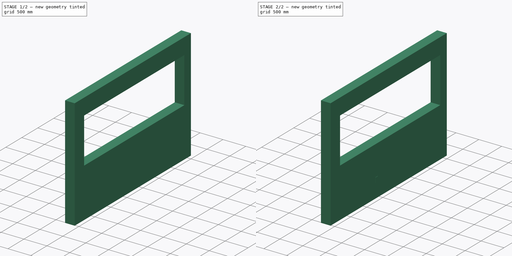
[diagram: build sequence overview — one tinted view per stage of 2, left to right]
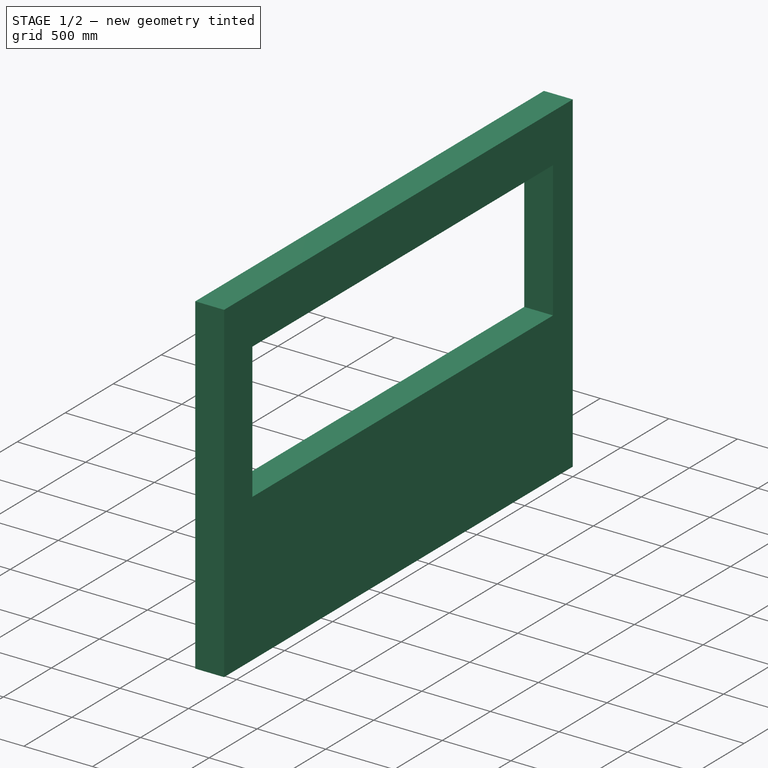
[diagram: stage 1 of 2 — iso view after this stage's code; geometry added in this stage tinted green]
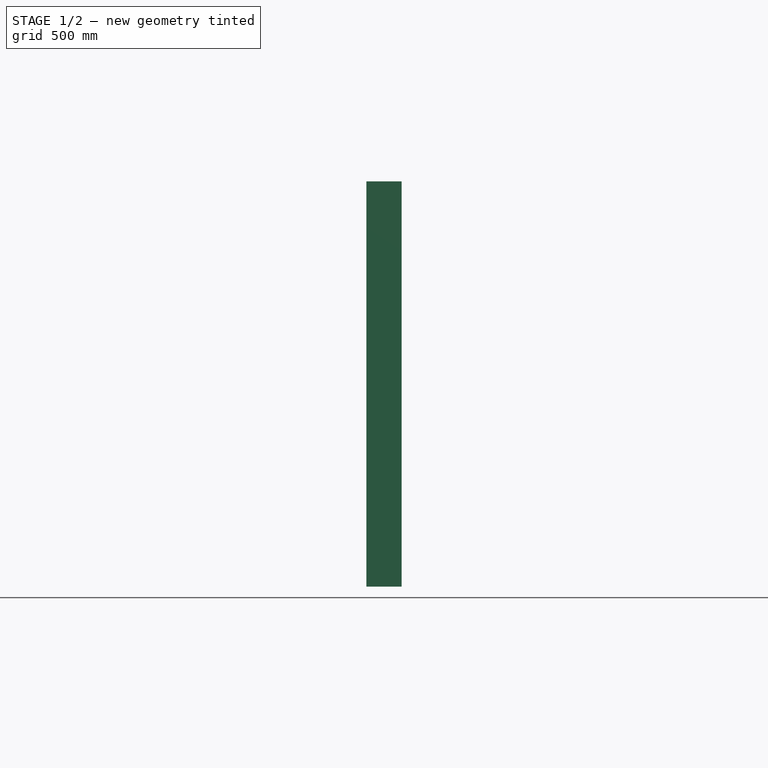
[diagram: stage 1 of 2 — front view after this stage's code; geometry added in this stage tinted green]
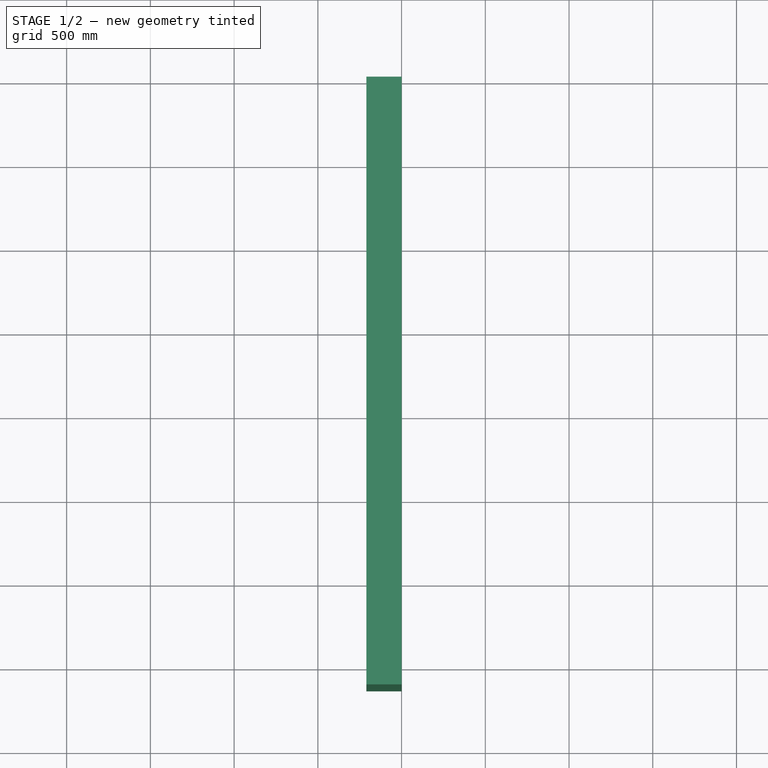
[diagram: stage 1 of 2 — top view after this stage's code; geometry added in this stage tinted green]
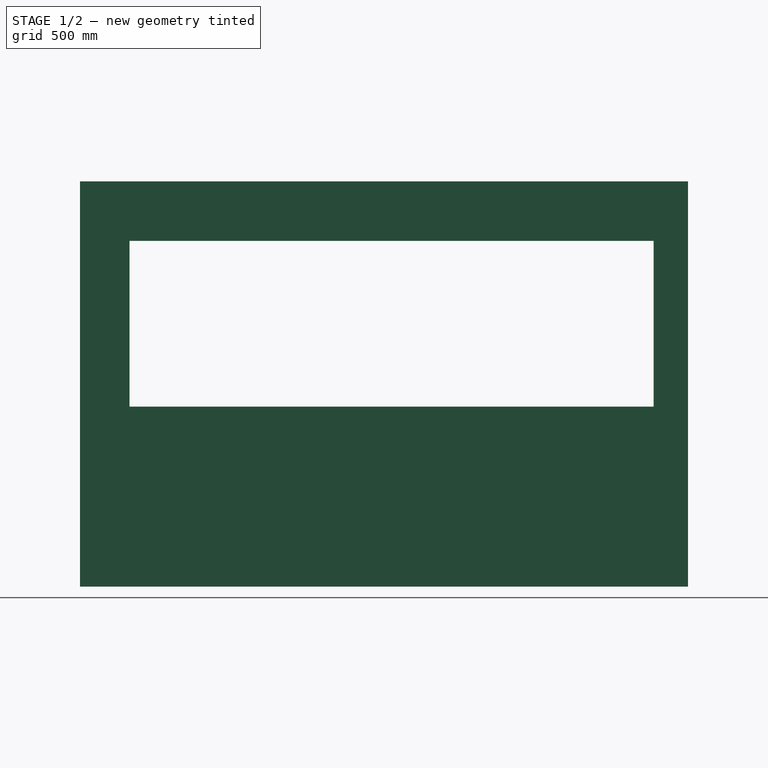
[diagram: stage 1 of 2 — right view after this stage's code; geometry added in this stage tinted green]
FCSTD DOCUMENT  (FreeCAD 0.19R24276 (Git))
Label: leftWall
License: All rights reserved
LicenseURL: http://en.wikipedia.org/wiki/All_rights_reserved
objects: Sketcher::SketchObject×2, PartDesign::Pad×2, PartDesign::Body×1
note: 7 computed .brp shape members not serialized (recipe doc carries the construction recipe); baked Part::Feature solids carry a one-line shape summary decoded from their .brp

FEATURE [Sketcher::SketchObject] Sketch
  FullyConstrained = true
  MapMode = 5
  Placement = pos=(0,0,0) rot=(0.57735,0.57735,0.57735;2.0944rad)
  Support = -> [YZ_Plane]
  sketch-geometry (8):
    g0: LineSegment StartX=0 StartY=0 StartZ=0 EndX=-3630 EndY=0 EndZ=0
    g1: LineSegment StartX=-3630 StartY=0 StartZ=0 EndX=-3630 EndY=2420 EndZ=0
    g2: LineSegment StartX=-3630 StartY=2420 StartZ=0 EndX=0 EndY=2420 EndZ=0
    g3: LineSegment StartX=0 StartY=2420 StartZ=0 EndX=0 EndY=0 EndZ=0
    g4: LineSegment StartX=-3335 StartY=2065 StartZ=0 EndX=-205 EndY=2065 EndZ=0
    g5: LineSegment StartX=-205 StartY=2065 StartZ=0 EndX=-205 EndY=1075 EndZ=0
    g6: LineSegment StartX=-205 StartY=1075 StartZ=0 EndX=-3335 EndY=1075 EndZ=0
    g7: LineSegment StartX=-3335 StartY=1075 StartZ=0 EndX=-3335 EndY=2065 EndZ=0
  constraints (23):
    c: Coincident(g0,g1)
    c: Coincident(g1,g2)
    c: Coincident(g2,g3)
    c: Coincident(g3,g0)
    c: Horizontal(g0)
    c: Horizontal(g2)
    c: Vertical(g1)
    c: Vertical(g3)
    c: Coincident(g0,g-1)
    c: DistanceX(g2,g2) = 3630
    c: DistanceY(g3,g3) = 2420
    c: Coincident(g4,g5)
    c: Coincident(g5,g6)
    c: Coincident(g6,g7)
    c: Coincident(g7,g4)
    c: Horizontal(g4)
    c: Horizontal(g6)
    c: Vertical(g5)
    c: Vertical(g7)
    c: DistanceX(g0,g6) = 295
    c: DistanceY(g0,g6) = 1075
    c: DistanceY(g7,g7) = 990
    c: DistanceX(g4,g4) = 3130
FEATURE [PartDesign::Pad] Pad
  Direction = (1,1,1)
  Length = 210
  Length2 = 100
  Placement = pos=(0,0,0) rot=(0.57735,0.57735,0.57735;2.0944rad)
  Profile = -> Sketch
  Reversed = true
  Type = 0
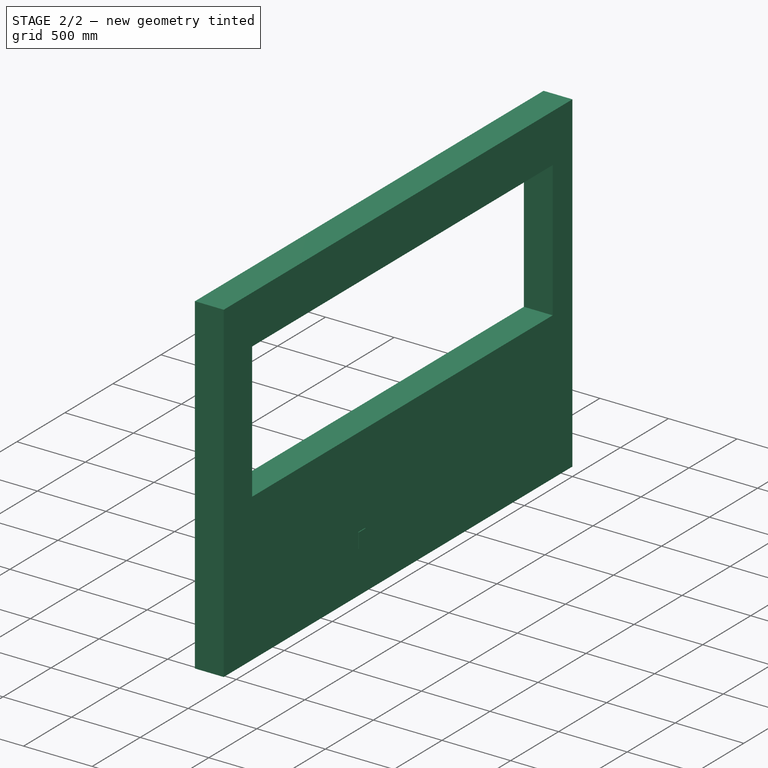
[diagram: stage 2 of 2 — iso view after this stage's code; geometry added in this stage tinted green]
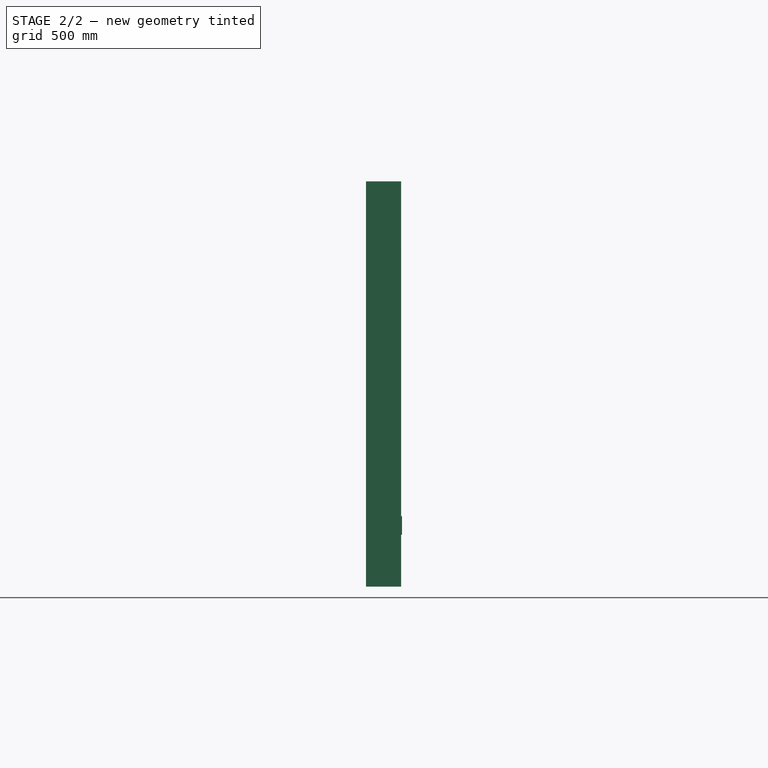
[diagram: stage 2 of 2 — front view after this stage's code; geometry added in this stage tinted green]
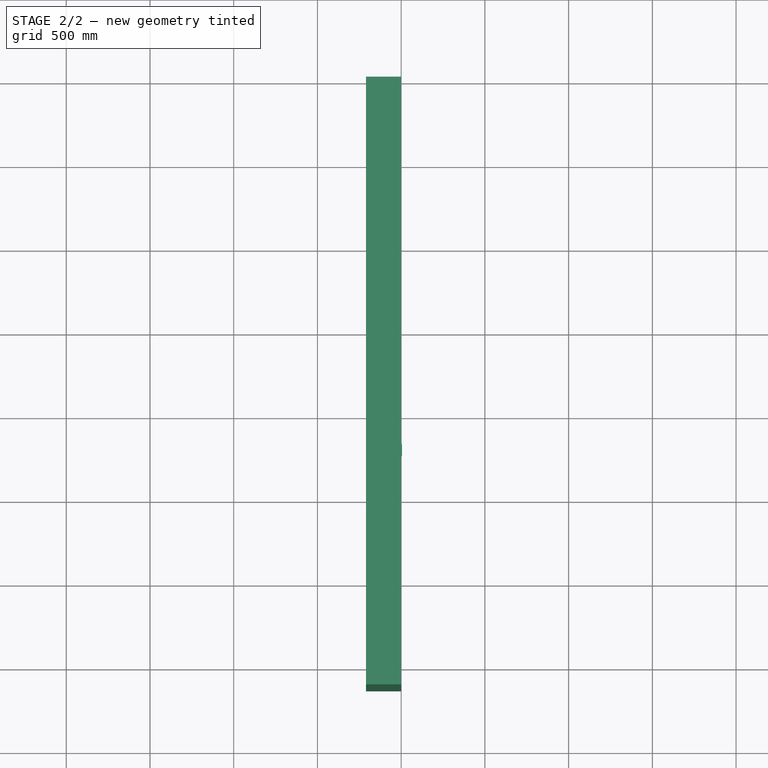
[diagram: stage 2 of 2 — top view after this stage's code; geometry added in this stage tinted green]
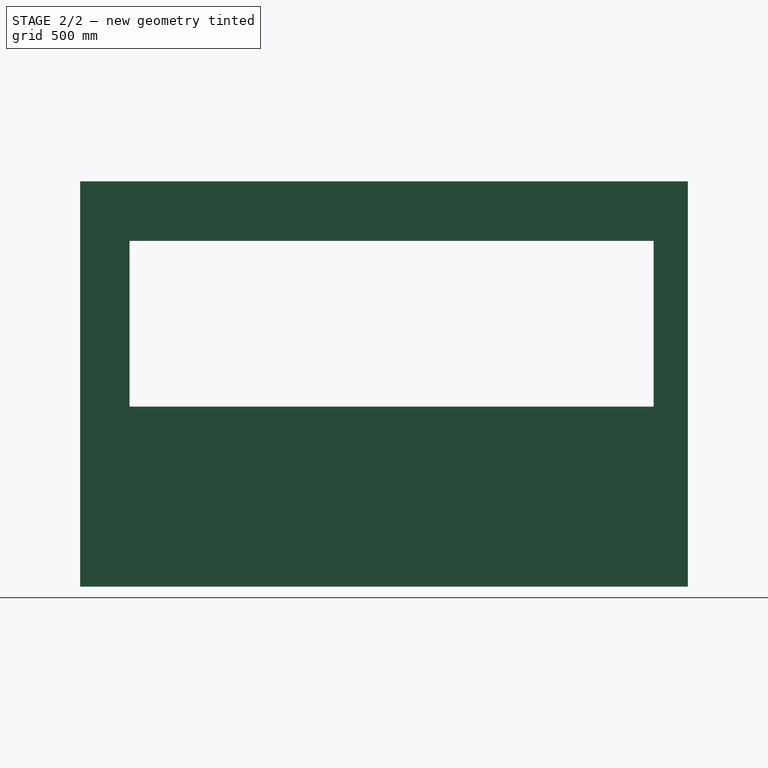
[diagram: stage 2 of 2 — right view after this stage's code; geometry added in this stage tinted green]
FEATURE [Sketcher::SketchObject] Sketch001
  FullyConstrained = true
  MapMode = 5
  Placement = pos=(1.343e-13,0,0) rot=(0.57735,0.57735,0.57735;2.0944rad)
  Support = -> [Pad]
  sketch-geometry (4):
    g0: LineSegment StartX=-2230 StartY=420 StartZ=0 EndX=-2160 EndY=420 EndZ=0
    g1: LineSegment StartX=-2160 StartY=420 StartZ=0 EndX=-2160 EndY=310 EndZ=0
    g2: LineSegment StartX=-2160 StartY=310 StartZ=0 EndX=-2230 EndY=310 EndZ=0
    g3: LineSegment StartX=-2230 StartY=310 StartZ=0 EndX=-2230 EndY=420 EndZ=0
  constraints (12):
    c: Coincident(g0,g1)
    c: Coincident(g1,g2)
    c: Coincident(g2,g3)
    c: Coincident(g3,g0)
    c: Horizontal(g0)
    c: Horizontal(g2)
    c: Vertical(g1)
    c: Vertical(g3)
    c: DistanceX(g1,g-1) = 2160
    c: DistanceY(g-1,g1) = 310
    c: DistanceY(g1,g0) = 110
    c: DistanceX(g0,g0) = 70
FEATURE [PartDesign::Pad] Pad001
  BaseFeature = -> Pad
  Direction = (1,1,1)
  Length = 5
  Length2 = 100
  Placement = pos=(0,0,0) rot=(0.57735,0.57735,0.57735;2.0944rad)
  Profile = -> Sketch001
  Type = 0
FEATURE [PartDesign::Body] Body
  Group = -> [Sketch,Pad,Sketch001,Pad001]
  Origin = -> Origin
  Tip = -> Pad001
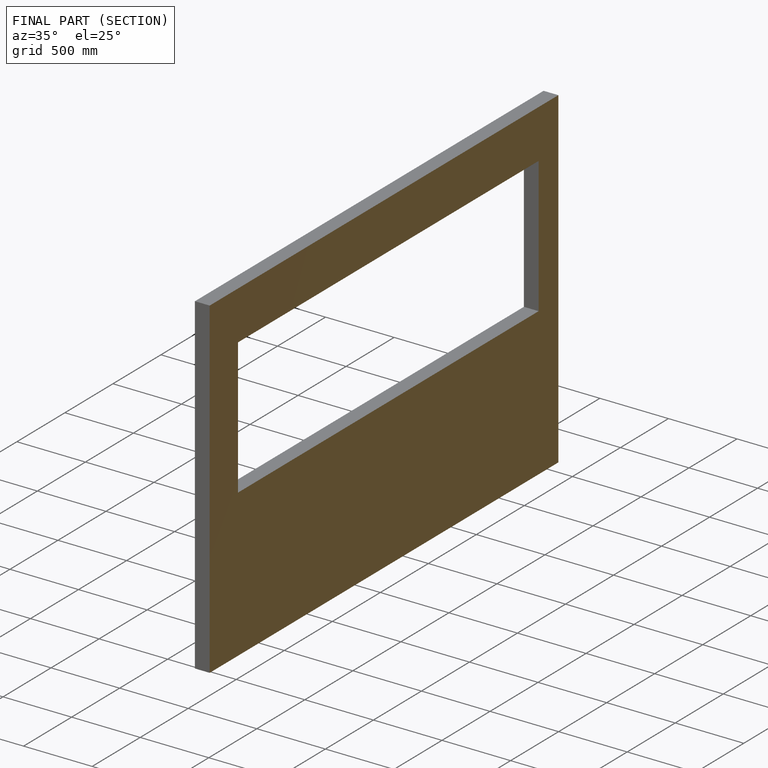
[diagram: finished part — half-section view (interior)]
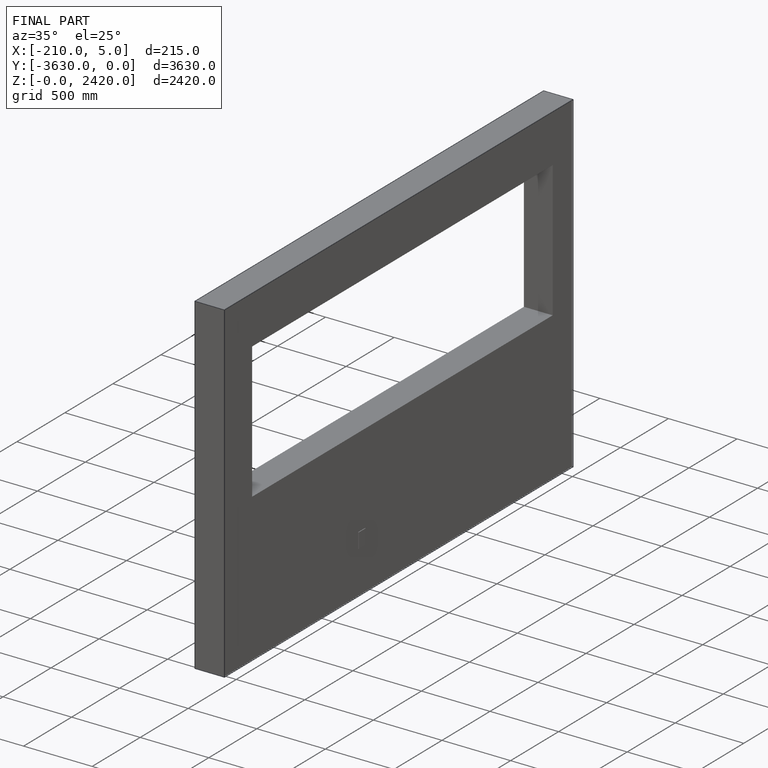
[diagram: finished part — iso view with bounding-box wireframe]
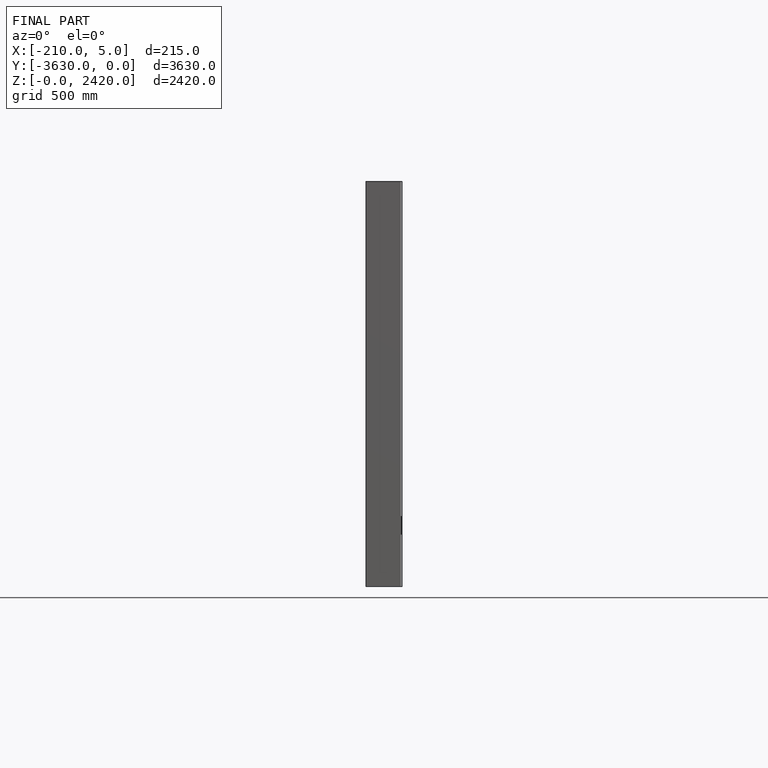
[diagram: finished part — front view with bounding-box wireframe]
